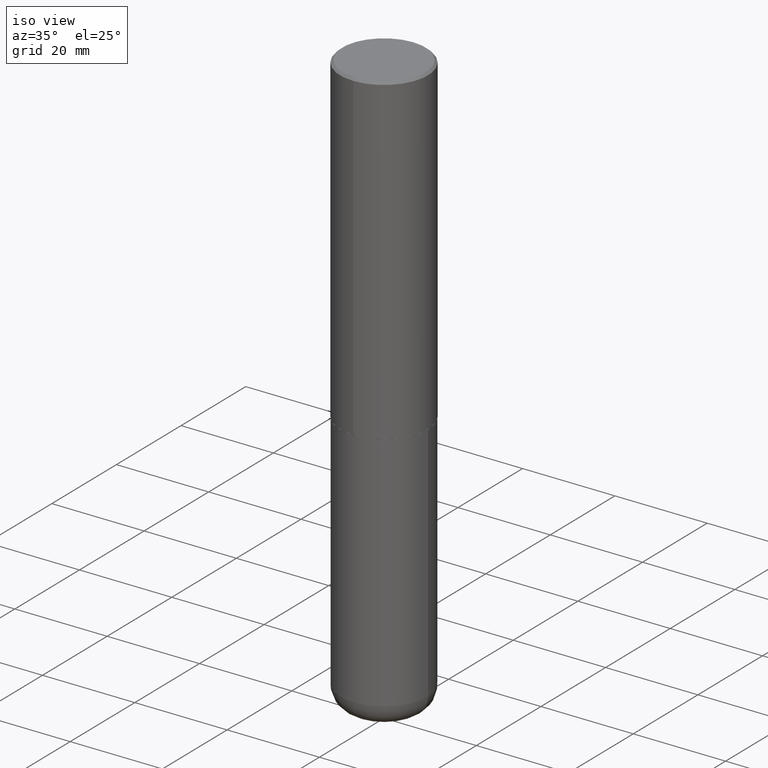
[diagram: clean part render]
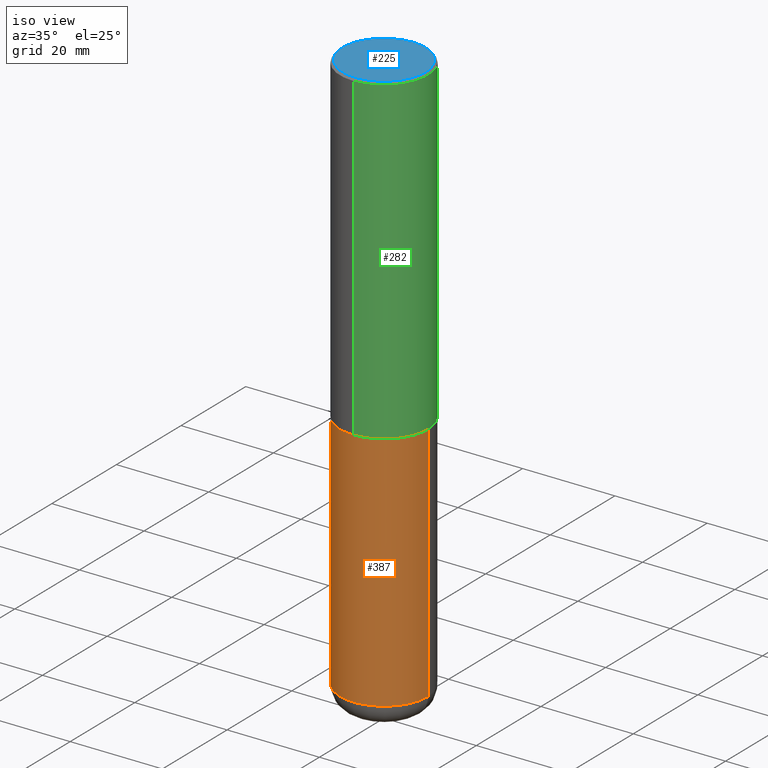
[diagram: same view with three faces highlighted in distinct colors, each labeled with its STEP entity id]
A machine part, iso view with three faces highlighted in distinct colors.
Their STEP definitions:

[orange] entity #387 — the highlighted cylindrical surface (partial cylindrical patch) has radius 9.525 mm, axis along (-0, 0, 1).
#16 = CARTESIAN_POINT ( 'NONE',  ( -0.3750000000000000555, -1.053326420172671351E-14, -2.750000000000000000 ) ) ;
#22 = AXIS2_PLACEMENT_3D ( 'NONE', #133, #206, #99 ) ;
#52 = VECTOR ( 'NONE', #82, 39.37007874015748143 ) ;
#54 = CARTESIAN_POINT ( 'NONE',  ( -0.3750000000000000555, -1.412948998073515443E-14, -4.810000000000000497 ) ) ;
#58 = CARTESIAN_POINT ( 'NONE',  ( 1.176270495775050811E-28, -1.679402523983553013E-14, -4.810000000000000497 ) ) ;
#81 = CARTESIAN_POINT ( 'NONE',  ( 0.3750000000000000555, -1.941263624396788015E-14, -4.810000000000000497 ) ) ;
#82 = DIRECTION ( 'NONE',  ( -2.445468806185136877E-29, 3.491481338843145188E-15, 1.000000000000000000 ) ) ;
#94 = EDGE_LOOP ( 'NONE', ( #382, #356, #403, #261 ) ) ;
#99 = DIRECTION ( 'NONE',  ( 1.000000000000000000, -6.982962677686266711E-15, 0.000000000000000000 ) ) ;
#122 = DIRECTION ( 'NONE',  ( -2.445468806185136597E-29, 3.491481338843145583E-15, 1.000000000000000000 ) ) ;
#123 = VERTEX_POINT ( 'NONE', #161 ) ;
#127 = DIRECTION ( 'NONE',  ( 1.000000000000000000, -6.982962677686265922E-15, 0.000000000000000000 ) ) ;
#133 = CARTESIAN_POINT ( 'NONE',  ( 6.725039217009124520E-29, -9.601573681818649859E-15, -2.750000000000000000 ) ) ;
#146 = LINE ( 'NONE', #275, #246 ) ;
#151 = FACE_OUTER_BOUND ( 'NONE', #94, .T. ) ;
#154 = EDGE_CURVE ( 'NONE', #322, #123, #183, .T. ) ;
#161 = CARTESIAN_POINT ( 'NONE',  ( 0.3750000000000000555, -1.222018468595100145E-14, -2.750000000000000000 ) ) ;
#183 = CIRCLE ( 'NONE', #22, 0.3750000000000000555 ) ;
#187 = LINE ( 'NONE', #281, #52 ) ;
#206 = DIRECTION ( 'NONE',  ( -2.445468806185136597E-29, 3.491481338843145583E-15, 1.000000000000000000 ) ) ;
#210 = EDGE_CURVE ( 'NONE', #351, #322, #187, .T. ) ;
#228 = VERTEX_POINT ( 'NONE', #81 ) ;
#229 = AXIS2_PLACEMENT_3D ( 'NONE', #58, #122, #127 ) ;
#246 = VECTOR ( 'NONE', #337, 39.37007874015748143 ) ;
#255 = CARTESIAN_POINT ( 'NONE',  ( 0.000000000000000000, 0.000000000000000000, 0.000000000000000000 ) ) ;
#258 = DIRECTION ( 'NONE',  ( 1.000000000000000000, -6.982962677686265922E-15, 4.876176775795935793E-29 ) ) ;
#261 = ORIENTED_EDGE ( 'NONE', *, *, #154, .F. ) ;
#265 = AXIS2_PLACEMENT_3D ( 'NONE', #255, #348, #258 ) ;
#266 = CYLINDRICAL_SURFACE ( 'NONE', #265, 0.3750000000000001110 ) ;
#275 = CARTESIAN_POINT ( 'NONE',  ( 0.3750000000000001110, -2.618611004132350411E-15, 1.828566290923476483E-29 ) ) ;
#281 = CARTESIAN_POINT ( 'NONE',  ( -0.3750000000000001110, 2.664535259100376486E-15, -1.844600658845590159E-29 ) ) ;
#285 = CIRCLE ( 'NONE', #229, 0.3750000000000001110 ) ;
#287 = EDGE_CURVE ( 'NONE', #228, #123, #146, .T. ) ;
#322 = VERTEX_POINT ( 'NONE', #16 ) ;
#337 = DIRECTION ( 'NONE',  ( -2.445468806185136877E-29, 3.491481338843145188E-15, 1.000000000000000000 ) ) ;
#348 = DIRECTION ( 'NONE',  ( -2.445468806185136597E-29, 3.491481338843145583E-15, 1.000000000000000000 ) ) ;
#351 = VERTEX_POINT ( 'NONE', #54 ) ;
#356 = ORIENTED_EDGE ( 'NONE', *, *, #358, .T. ) ;
#358 = EDGE_CURVE ( 'NONE', #351, #228, #285, .T. ) ;
#382 = ORIENTED_EDGE ( 'NONE', *, *, #210, .F. ) ;
#387 = ADVANCED_FACE ( 'NONE', ( #151 ), #266, .T. ) ;
#403 = ORIENTED_EDGE ( 'NONE', *, *, #287, .T. ) ;

[blue] entity #225 — the highlighted planar face has unit normal (0, -0, -1).
#29 = VERTEX_POINT ( 'NONE', #43 ) ;
#43 = CARTESIAN_POINT ( 'NONE',  ( -2.504081769186608216E-15, -0.3549999999999999822, 1.285848347115290366E-15 ) ) ;
#46 = CIRCLE ( 'NONE', #208, 0.3549999999999999822 ) ;
#53 = DIRECTION ( 'NONE',  ( -6.982962677686265922E-15, -1.000000000000000000, 3.490662795793665557E-15 ) ) ;
#84 = CARTESIAN_POINT ( 'NONE',  ( -1.141397163745304909E-45, 1.628849886601155835E-31, 4.666305460853910467E-17 ) ) ;
#91 = EDGE_LOOP ( 'NONE', ( #194, #92 ) ) ;
#92 = ORIENTED_EDGE ( 'NONE', *, *, #212, .T. ) ;
#110 = DIRECTION ( 'NONE',  ( -2.446040391741596606E-29, 3.490662795793665557E-15, 1.000000000000000000 ) ) ;
#178 = VERTEX_POINT ( 'NONE', #200 ) ;
#182 = DIRECTION ( 'NONE',  ( 6.982962677686265922E-15, 1.000000000000000000, -3.490662795793665557E-15 ) ) ;
#184 = PLANE ( 'NONE',  #396 ) ;
#194 = ORIENTED_EDGE ( 'NONE', *, *, #339, .T. ) ;
#200 = CARTESIAN_POINT ( 'NONE',  ( 2.548781377355487113E-15, 0.3549999999999999822, -1.192522237898212341E-15 ) ) ;
#208 = AXIS2_PLACEMENT_3D ( 'NONE', #219, #232, #253 ) ;
#212 = EDGE_CURVE ( 'NONE', #29, #178, #264, .T. ) ;
#214 = AXIS2_PLACEMENT_3D ( 'NONE', #84, #110, #53 ) ;
#219 = CARTESIAN_POINT ( 'NONE',  ( -1.141397163745304909E-45, 1.628849886601155835E-31, 4.666305460853910467E-17 ) ) ;
#225 = ADVANCED_FACE ( 'NONE', ( #406 ), #184, .F. ) ;
#232 = DIRECTION ( 'NONE',  ( -2.446040391741596606E-29, 3.490662795793665557E-15, 1.000000000000000000 ) ) ;
#248 = CARTESIAN_POINT ( 'NONE',  ( 2.478951750578624209E-15, 0.3549999999999999822, -1.215853765202481601E-15 ) ) ;
#253 = DIRECTION ( 'NONE',  ( -6.982962677686265922E-15, -1.000000000000000000, 3.490662795793665557E-15 ) ) ;
#264 = CIRCLE ( 'NONE', #214, 0.3549999999999999822 ) ;
#339 = EDGE_CURVE ( 'NONE', #178, #29, #46, .T. ) ;
#374 = DIRECTION ( 'NONE',  ( 2.446040391741596045E-29, -3.490662795793665557E-15, -1.000000000000000000 ) ) ;
#396 = AXIS2_PLACEMENT_3D ( 'NONE', #248, #374, #182 ) ;
#406 = FACE_OUTER_BOUND ( 'NONE', #91, .T. ) ;

[green] entity #282 — the highlighted cylindrical surface (partial cylindrical patch) has radius 9.525 mm, axis along (-0, 0, 1).
#10 = EDGE_CURVE ( 'NONE', #370, #416, #347, .T. ) ;
#12 = CARTESIAN_POINT ( 'NONE',  ( -2.618611004132351594E-15, -0.3750000000000002220, 1.308998548422625521E-15 ) ) ;
#14 = DIRECTION ( 'NONE',  ( -6.982962677686266711E-15, -1.000000000000000000, 3.490662795793665951E-15 ) ) ;
#26 = EDGE_CURVE ( 'NONE', #130, #416, #362, .T. ) ;
#32 = EDGE_CURVE ( 'NONE', #59, #130, #334, .T. ) ;
#38 = DIRECTION ( 'NONE',  ( -6.982962677686265922E-15, -1.000000000000000000, 3.494488891895536035E-15 ) ) ;
#45 = DIRECTION ( 'NONE',  ( -2.446040391741596606E-29, 3.490662795793665557E-15, 1.000000000000000000 ) ) ;
#59 = VERTEX_POINT ( 'NONE', #333 ) ;
#66 = LINE ( 'NONE', #12, #245 ) ;
#68 = DIRECTION ( 'NONE',  ( -2.446040391741596606E-29, 3.490662795793665557E-15, 1.000000000000000000 ) ) ;
#73 = CARTESIAN_POINT ( 'NONE',  ( 4.892080783483214581E-31, -6.981325591587361238E-17, -0.02000000000000008715 ) ) ;
#76 = EDGE_CURVE ( 'NONE', #59, #370, #66, .T. ) ;
#79 = CYLINDRICAL_SURFACE ( 'NONE', #390, 0.3750000000000002220 ) ;
#85 = CARTESIAN_POINT ( 'NONE',  ( -2.572686749164323547E-15, -0.3750000000000001110, -0.01999999999999877570 ) ) ;
#130 = VERTEX_POINT ( 'NONE', #295 ) ;
#160 = ORIENTED_EDGE ( 'NONE', *, *, #32, .T. ) ;
#168 = DIRECTION ( 'NONE',  ( -2.446040391741596606E-29, 3.490662795793665557E-15, 1.000000000000000000 ) ) ;
#196 = EDGE_LOOP ( 'NONE', ( #160, #353, #321, #288 ) ) ;
#203 = DIRECTION ( 'NONE',  ( -6.982962677686265922E-15, -1.000000000000000000, 2.913971193241877611E-15 ) ) ;
#209 = CARTESIAN_POINT ( 'NONE',  ( 0.000000000000000000, 0.000000000000000000, 0.000000000000000000 ) ) ;
#245 = VECTOR ( 'NONE', #168, 39.37007874015748143 ) ;
#263 = CARTESIAN_POINT ( 'NONE',  ( 6.724165036897648492E-29, -9.595832025636787455E-15, -2.749000000000000110 ) ) ;
#277 = FACE_OUTER_BOUND ( 'NONE', #196, .T. ) ;
#282 = ADVANCED_FACE ( 'NONE', ( #277 ), #79, .T. ) ;
#288 = ORIENTED_EDGE ( 'NONE', *, *, #76, .F. ) ;
#295 = CARTESIAN_POINT ( 'NONE',  ( 2.664535259100411196E-15, 0.3749999999999907296, -2.749000000000000998 ) ) ;
#302 = DIRECTION ( 'NONE',  ( -2.446040391741596606E-29, 3.490662795793665557E-15, 1.000000000000000000 ) ) ;
#303 = VECTOR ( 'NONE', #68, 39.37007874015748143 ) ;
#319 = AXIS2_PLACEMENT_3D ( 'NONE', #73, #360, #38 ) ;
#321 = ORIENTED_EDGE ( 'NONE', *, *, #10, .F. ) ;
#333 = CARTESIAN_POINT ( 'NONE',  ( -2.618611004132284935E-15, -0.3750000000000099920, -2.748999999999999222 ) ) ;
#334 = CIRCLE ( 'NONE', #354, 0.3750000000000003886 ) ;
#347 = CIRCLE ( 'NONE', #319, 0.3750000000000000555 ) ;
#353 = ORIENTED_EDGE ( 'NONE', *, *, #26, .T. ) ;
#354 = AXIS2_PLACEMENT_3D ( 'NONE', #263, #302, #203 ) ;
#360 = DIRECTION ( 'NONE',  ( -2.446040391741596606E-29, 3.490662795793665557E-15, 1.000000000000000000 ) ) ;
#362 = LINE ( 'NONE', #368, #303 ) ;
#368 = CARTESIAN_POINT ( 'NONE',  ( 2.664535259100376880E-15, 0.3750000000000002220, -1.308998548422625521E-15 ) ) ;
#370 = VERTEX_POINT ( 'NONE', #85 ) ;
#383 = CARTESIAN_POINT ( 'NONE',  ( 2.618611004132350411E-15, 0.3749999999999999445, -0.02000000000000139513 ) ) ;
#390 = AXIS2_PLACEMENT_3D ( 'NONE', #209, #45, #14 ) ;
#416 = VERTEX_POINT ( 'NONE', #383 ) ;